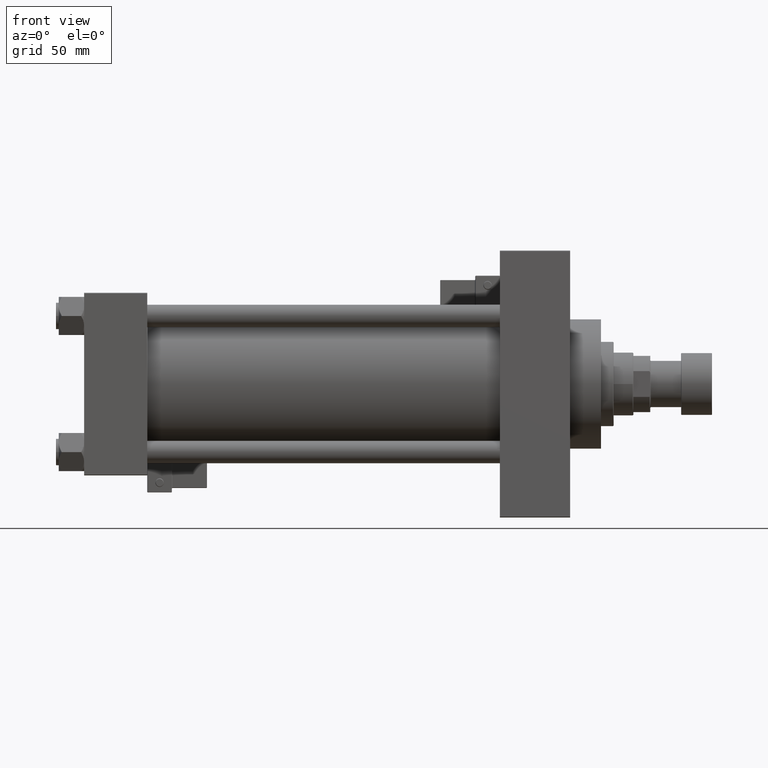
[diagram: clean part render]
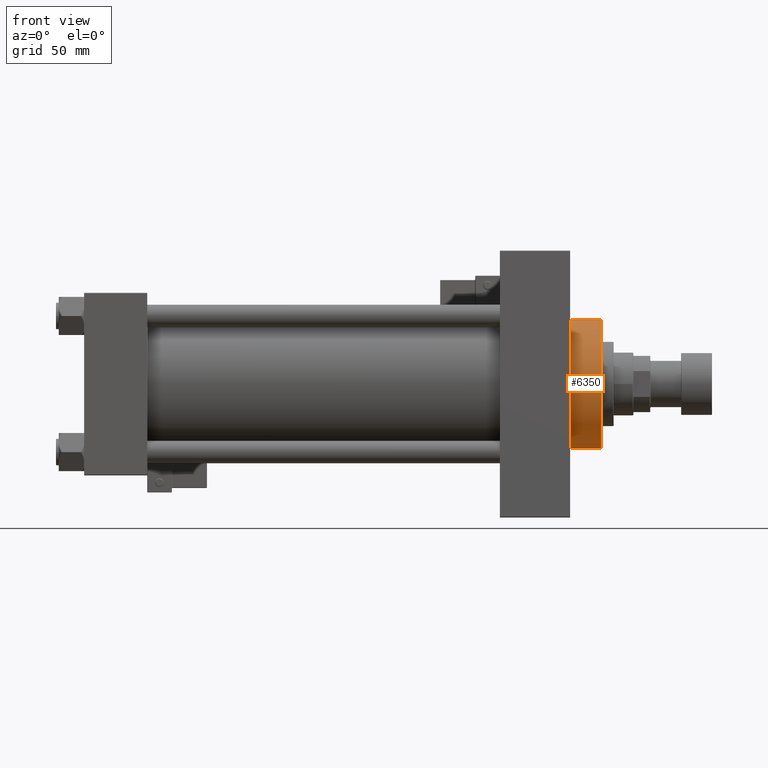
[diagram: same view with one face highlighted and labeled with its STEP entity id]
A machine part, front view. The second image highlights one B-rep face of the part: STEP entity #6350.
In plain terms, the highlighted cylindrical surface (partial cylindrical patch) has radius 46 mm, axis along (-1, -0, -0).
Its self-contained STEP definition (entity closure, byte-faithful):
#1535 = ORIENTED_EDGE ( 'NONE', *, *, #49963, .F. ) ;
#1983 = VERTEX_POINT ( 'NONE', #35864 ) ;
#4489 = VERTEX_POINT ( 'NONE', #12936 ) ;
#5896 = CYLINDRICAL_SURFACE ( 'NONE', #42232, 46.00000000000000000 ) ;
#6350 = ADVANCED_FACE ( 'NONE', ( #40244 ), #5896, .T. ) ;
#9534 = DIRECTION ( 'NONE',  ( -1.000000000000000000, -0.000000000000000000, -0.000000000000000000 ) ) ;
#12936 = CARTESIAN_POINT ( 'NONE',  ( 368.0000000000000000, 0.000000000000000000, 46.00000000000000000 ) ) ;
#13589 = LINE ( 'NONE', #21723, #28540 ) ;
#14233 = ORIENTED_EDGE ( 'NONE', *, *, #31561, .T. ) ;
#15524 = CARTESIAN_POINT ( 'NONE',  ( 346.0000000000000000, 0.000000000000000000, 0.000000000000000000 ) ) ;
#16433 = AXIS2_PLACEMENT_3D ( 'NONE', #15524, #22646, #18593 ) ;
#17355 = CARTESIAN_POINT ( 'NONE',  ( 346.0000000000000000, 5.633375276077824704E-15, -46.00000000000000000 ) ) ;
#18200 = CARTESIAN_POINT ( 'NONE',  ( 346.0000000000000000, 0.000000000000000000, 46.00000000000000000 ) ) ;
#18593 = DIRECTION ( 'NONE',  ( 0.000000000000000000, 0.000000000000000000, -1.000000000000000000 ) ) ;
#19048 = DIRECTION ( 'NONE',  ( -1.000000000000000000, -0.000000000000000000, -0.000000000000000000 ) ) ;
#20893 = CARTESIAN_POINT ( 'NONE',  ( 368.0000000000000000, 0.000000000000000000, 0.000000000000000000 ) ) ;
#21163 = CARTESIAN_POINT ( 'NONE',  ( 368.0000000000000000, 0.000000000000000000, 0.000000000000000000 ) ) ;
#21723 = CARTESIAN_POINT ( 'NONE',  ( 368.0000000000000000, 0.000000000000000000, 46.00000000000000000 ) ) ;
#21884 = EDGE_CURVE ( 'NONE', #1983, #50025, #22102, .T. ) ;
#22102 = LINE ( 'NONE', #43195, #42876 ) ;
#22646 = DIRECTION ( 'NONE',  ( 1.000000000000000000, 0.000000000000000000, 0.000000000000000000 ) ) ;
#23604 = ORIENTED_EDGE ( 'NONE', *, *, #21884, .F. ) ;
#25472 = DIRECTION ( 'NONE',  ( 1.000000000000000000, 0.000000000000000000, 0.000000000000000000 ) ) ;
#28273 = DIRECTION ( 'NONE',  ( 0.000000000000000000, 0.000000000000000000, -1.000000000000000000 ) ) ;
#28540 = VECTOR ( 'NONE', #9534, 1000.000000000000000 ) ;
#31561 = EDGE_CURVE ( 'NONE', #42966, #50025, #36747, .T. ) ;
#35864 = CARTESIAN_POINT ( 'NONE',  ( 368.0000000000000000, 5.633375276077824704E-15, -46.00000000000000000 ) ) ;
#36747 = CIRCLE ( 'NONE', #16433, 46.00000000000000000 ) ;
#36771 = AXIS2_PLACEMENT_3D ( 'NONE', #21163, #25472, #28273 ) ;
#36928 = DIRECTION ( 'NONE',  ( -1.000000000000000000, -0.000000000000000000, -0.000000000000000000 ) ) ;
#37017 = ORIENTED_EDGE ( 'NONE', *, *, #48693, .T. ) ;
#37434 = DIRECTION ( 'NONE',  ( 0.000000000000000000, 0.000000000000000000, 1.000000000000000000 ) ) ;
#38406 = EDGE_LOOP ( 'NONE', ( #23604, #1535, #37017, #14233 ) ) ;
#39199 = CIRCLE ( 'NONE', #36771, 46.00000000000000000 ) ;
#40244 = FACE_OUTER_BOUND ( 'NONE', #38406, .T. ) ;
#42232 = AXIS2_PLACEMENT_3D ( 'NONE', #20893, #36928, #37434 ) ;
#42876 = VECTOR ( 'NONE', #19048, 1000.000000000000000 ) ;
#42966 = VERTEX_POINT ( 'NONE', #18200 ) ;
#43195 = CARTESIAN_POINT ( 'NONE',  ( 368.0000000000000000, 5.633375276077824704E-15, -46.00000000000000000 ) ) ;
#48693 = EDGE_CURVE ( 'NONE', #4489, #42966, #13589, .T. ) ;
#49963 = EDGE_CURVE ( 'NONE', #4489, #1983, #39199, .T. ) ;
#50025 = VERTEX_POINT ( 'NONE', #17355 ) ;